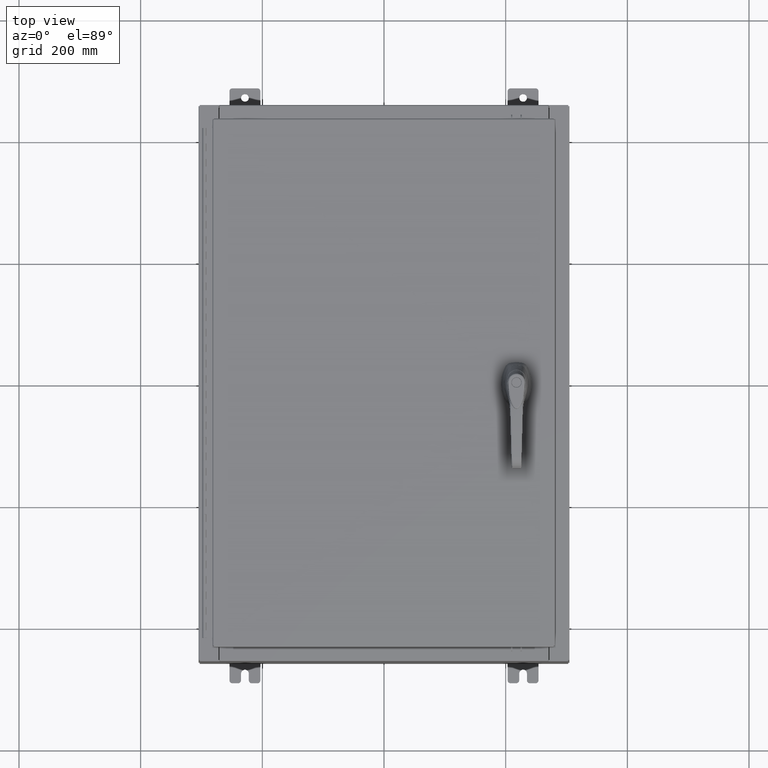
[diagram: clean part render]
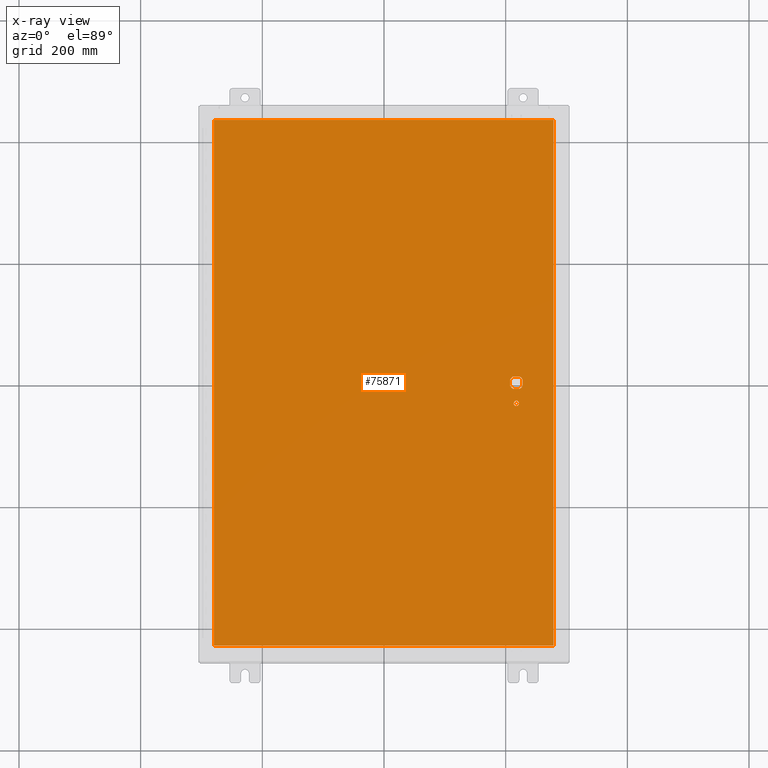
[diagram: x-ray — body ghosted, one internal face saturated and labeled with its STEP entity id]
A machine part, top view, then the same camera in x-ray: the body is ghosted and one INTERNAL B-rep face — a face not visible from any outside direction — is saturated and labeled: STEP entity #75871.
In plain terms, the highlighted planar face has unit normal (0, 0, -1).
Its self-contained STEP definition (entity closure, byte-faithful):
#1635 = CARTESIAN_POINT ( 'NONE',  ( 8.778227370756305000, -0.4029999999999252000, -0.07470000000000003000 ) ) ;
#1810 = DIRECTION ( 'NONE',  ( 1.000000000000000000, 0.0000000000000000000, 0.0000000000000000000 ) ) ;
#3817 = DIRECTION ( 'NONE',  ( 0.0000000000000000000, 0.0000000000000000000, -1.000000000000000000 ) ) ;
#4248 = VERTEX_POINT ( 'NONE', #1635 ) ;
#4332 = CIRCLE ( 'NONE', #76165, 0.4499999999999156900 ) ;
#6293 = CARTESIAN_POINT ( 'NONE',  ( 8.406499999999994100, -1.338000000000000100, -0.07470000000000003000 ) ) ;
#6385 = ORIENTED_EDGE ( 'NONE', *, *, #120303, .F. ) ;
#7230 = VECTOR ( 'NONE', #103252, 39.37007874015748100 ) ;
#7415 = DIRECTION ( 'NONE',  ( -1.000000000000000000, 0.0000000000000000000, 0.0000000000000000000 ) ) ;
#10575 = AXIS2_PLACEMENT_3D ( 'NONE', #108291, #56318, #68976 ) ;
#11255 = FACE_BOUND ( 'NONE', #45939, .T. ) ;
#11481 = EDGE_CURVE ( 'NONE', #4248, #78323, #62853, .T. ) ;
#12783 = AXIS2_PLACEMENT_3D ( 'NONE', #46728, #113292, #56379 ) ;
#12859 = LINE ( 'NONE', #58944, #91903 ) ;
#13143 = EDGE_CURVE ( 'NONE', #29870, #50978, #116078, .T. ) ;
#17678 = CARTESIAN_POINT ( 'NONE',  ( 0.0000000000000000000, 0.4029999999999252000, -0.07470000000000003000 ) ) ;
#18166 = VECTOR ( 'NONE', #55016, 39.37007874015748100 ) ;
#19705 = DIRECTION ( 'NONE',  ( 0.0000000000000000000, -1.000000000000000000, 0.0000000000000000000 ) ) ;
#20570 = CIRCLE ( 'NONE', #77785, 0.4499999999999156900 ) ;
#20671 = CARTESIAN_POINT ( 'NONE',  ( 8.980999999999921700, 2.450686610769031800E-014, -0.07470000000000003000 ) ) ;
#21495 = VECTOR ( 'NONE', #102385, 39.37007874015748100 ) ;
#22267 = EDGE_CURVE ( 'NONE', #25286, #29870, #61058, .T. ) ;
#22571 = ORIENTED_EDGE ( 'NONE', *, *, #24689, .T. ) ;
#23260 = CARTESIAN_POINT ( 'NONE',  ( 8.377772629243686700, -0.4029999999999250300, -0.07470000000000003000 ) ) ;
#23536 = VERTEX_POINT ( 'NONE', #82858 ) ;
#24689 = EDGE_CURVE ( 'NONE', #50978, #4248, #12859, .T. ) ;
#25286 = VERTEX_POINT ( 'NONE', #54803 ) ;
#27981 = ORIENTED_EDGE ( 'NONE', *, *, #74382, .F. ) ;
#29475 = CARTESIAN_POINT ( 'NONE',  ( 8.577999999999995900, 0.0000000000000000000, -0.07470000000000003000 ) ) ;
#29632 = EDGE_CURVE ( 'NONE', #80615, #23536, #48940, .T. ) ;
#29870 = VERTEX_POINT ( 'NONE', #40923 ) ;
#32139 = PLANE ( 'NONE',  #79292 ) ;
#35883 = VERTEX_POINT ( 'NONE', #42604 ) ;
#36809 = ORIENTED_EDGE ( 'NONE', *, *, #29632, .T. ) ;
#38131 = AXIS2_PLACEMENT_3D ( 'NONE', #121439, #64613, #7415 ) ;
#39087 = DIRECTION ( 'NONE',  ( -1.000000000000000000, 0.0000000000000000000, 0.0000000000000000000 ) ) ;
#39610 = EDGE_CURVE ( 'NONE', #54809, #51917, #114730, .T. ) ;
#39821 = DIRECTION ( 'NONE',  ( 2.728745808672812900E-015, -1.000000000000000000, 0.0000000000000000000 ) ) ;
#40923 = CARTESIAN_POINT ( 'NONE',  ( 8.175000000000070000, -0.2002273707563079800, -0.07470000000000003000 ) ) ;
#42604 = CARTESIAN_POINT ( 'NONE',  ( 8.980999999999921700, 0.2002273707563080300, -0.07470000000000003000 ) ) ;
#43017 = VECTOR ( 'NONE', #19705, 39.37007874015748100 ) ;
#43093 = CARTESIAN_POINT ( 'NONE',  ( 8.577999999999995900, 0.0000000000000000000, -0.07470000000000003000 ) ) ;
#43191 = DIRECTION ( 'NONE',  ( 1.000000000000000000, -0.0000000000000000000, -0.0000000000000000000 ) ) ;
#44997 = VERTEX_POINT ( 'NONE', #115976 ) ;
#45344 = CARTESIAN_POINT ( 'NONE',  ( 10.99029999999999800, 17.00630000000000700, -0.07470000000000019700 ) ) ;
#45939 = EDGE_LOOP ( 'NONE', ( #78396, #94423 ) ) ;
#46728 = CARTESIAN_POINT ( 'NONE',  ( 8.577999999999995900, -1.338000000000000100, -0.07470000000000003000 ) ) ;
#47292 = VECTOR ( 'NONE', #39821, 39.37007874015748100 ) ;
#48876 = EDGE_CURVE ( 'NONE', #75411, #119928, #100498, .T. ) ;
#48940 = LINE ( 'NONE', #17678, #96577 ) ;
#49616 = CARTESIAN_POINT ( 'NONE',  ( 8.749499999999997600, -1.338000000000000100, -0.07470000000000003000 ) ) ;
#50978 = VERTEX_POINT ( 'NONE', #23260 ) ;
#51331 = CARTESIAN_POINT ( 'NONE',  ( 0.0000000000000000000, 0.0000000000000000000, -0.07470000000000000300 ) ) ;
#51416 = CIRCLE ( 'NONE', #12783, 0.1715000000000011500 ) ;
#51917 = VERTEX_POINT ( 'NONE', #116875 ) ;
#52743 = DIRECTION ( 'NONE',  ( -1.000000000000000000, 0.0000000000000000000, 0.0000000000000000000 ) ) ;
#54803 = CARTESIAN_POINT ( 'NONE',  ( 8.175000000000070000, 0.2002273707563080300, -0.07470000000000003000 ) ) ;
#54809 = VERTEX_POINT ( 'NONE', #100328 ) ;
#55016 = DIRECTION ( 'NONE',  ( 0.0000000000000000000, 1.000000000000000000, 0.0000000000000000000 ) ) ;
#56318 = DIRECTION ( 'NONE',  ( -0.0000000000000000000, -0.0000000000000000000, 1.000000000000000000 ) ) ;
#56379 = DIRECTION ( 'NONE',  ( -1.000000000000000000, 0.0000000000000000000, 0.0000000000000000000 ) ) ;
#57294 = ORIENTED_EDGE ( 'NONE', *, *, #112961, .F. ) ;
#57479 = DIRECTION ( 'NONE',  ( -1.000000000000000000, 1.776356839400251300E-015, 0.0000000000000000000 ) ) ;
#57687 = CARTESIAN_POINT ( 'NONE',  ( -10.99030000000000500, 17.00630000000000700, -0.07470000000000347200 ) ) ;
#58944 = CARTESIAN_POINT ( 'NONE',  ( 0.0000000000000000000, -0.4029999999999252000, -0.07470000000000003000 ) ) ;
#60255 = ORIENTED_EDGE ( 'NONE', *, *, #13143, .T. ) ;
#61058 = LINE ( 'NONE', #121856, #7230 ) ;
#62099 = FACE_BOUND ( 'NONE', #113496, .T. ) ;
#62853 = CIRCLE ( 'NONE', #77577, 0.4499999999999156900 ) ;
#64613 = DIRECTION ( 'NONE',  ( -0.0000000000000000000, -0.0000000000000000000, 1.000000000000000000 ) ) ;
#68360 = LINE ( 'NONE', #57687, #43017 ) ;
#68976 = DIRECTION ( 'NONE',  ( -1.000000000000000000, 8.881784197001256300E-016, 0.0000000000000000000 ) ) ;
#70529 = DIRECTION ( 'NONE',  ( -1.000000000000000000, 0.0000000000000000000, -0.0000000000000000000 ) ) ;
#70849 = ORIENTED_EDGE ( 'NONE', *, *, #11481, .T. ) ;
#72117 = CARTESIAN_POINT ( 'NONE',  ( 8.577999999999995900, 0.0000000000000000000, -0.07470000000000003000 ) ) ;
#72657 = LINE ( 'NONE', #20671, #47292 ) ;
#73153 = VECTOR ( 'NONE', #43191, 39.37007874015748100 ) ;
#74382 = EDGE_CURVE ( 'NONE', #35883, #78323, #72657, .T. ) ;
#75411 = VERTEX_POINT ( 'NONE', #6293 ) ;
#75871 = ADVANCED_FACE ( 'NONE', ( #11255, #84333, #62099 ), #32139, .T. ) ;
#76165 = AXIS2_PLACEMENT_3D ( 'NONE', #43093, #109679, #52743 ) ;
#77577 = AXIS2_PLACEMENT_3D ( 'NONE', #72117, #93680, #57479 ) ;
#77785 = AXIS2_PLACEMENT_3D ( 'NONE', #29475, #96101, #39087 ) ;
#78323 = VERTEX_POINT ( 'NONE', #113856 ) ;
#78396 = ORIENTED_EDGE ( 'NONE', *, *, #86772, .T. ) ;
#79292 = AXIS2_PLACEMENT_3D ( 'NONE', #51331, #3817, #70529 ) ;
#80615 = VERTEX_POINT ( 'NONE', #91158 ) ;
#81729 = ORIENTED_EDGE ( 'NONE', *, *, #104949, .T. ) ;
#82858 = CARTESIAN_POINT ( 'NONE',  ( 8.377772629243686700, 0.4029999999999252000, -0.07470000000000003000 ) ) ;
#84009 = EDGE_LOOP ( 'NONE', ( #6385, #118738, #57294, #88980 ) ) ;
#84333 = FACE_OUTER_BOUND ( 'NONE', #84009, .T. ) ;
#86772 = EDGE_CURVE ( 'NONE', #119928, #75411, #51416, .T. ) ;
#87246 = EDGE_CURVE ( 'NONE', #112032, #44997, #119776, .T. ) ;
#88980 = ORIENTED_EDGE ( 'NONE', *, *, #87246, .F. ) ;
#91158 = CARTESIAN_POINT ( 'NONE',  ( 8.778227370756305000, 0.4029999999999250300, -0.07470000000000003000 ) ) ;
#91903 = VECTOR ( 'NONE', #1810, 39.37007874015748100 ) ;
#93680 = DIRECTION ( 'NONE',  ( -0.0000000000000000000, -0.0000000000000000000, 1.000000000000000000 ) ) ;
#94423 = ORIENTED_EDGE ( 'NONE', *, *, #48876, .T. ) ;
#96101 = DIRECTION ( 'NONE',  ( -0.0000000000000000000, -0.0000000000000000000, 1.000000000000000000 ) ) ;
#96577 = VECTOR ( 'NONE', #122472, 39.37007874015748100 ) ;
#100232 = CARTESIAN_POINT ( 'NONE',  ( -10.99030000000000000, -17.00629999999999600, -0.07470000000000019700 ) ) ;
#100328 = CARTESIAN_POINT ( 'NONE',  ( -10.99030000000000000, -17.00629999999999600, -0.07470000000000000300 ) ) ;
#100498 = CIRCLE ( 'NONE', #38131, 0.1715000000000011500 ) ;
#101121 = CARTESIAN_POINT ( 'NONE',  ( 10.99029999999999600, 17.00630000000000700, -0.07470000000000000300 ) ) ;
#102385 = DIRECTION ( 'NONE',  ( -1.000000000000000000, -0.0000000000000000000, -0.0000000000000000000 ) ) ;
#102396 = CARTESIAN_POINT ( 'NONE',  ( 10.99029999999999600, -17.00629999999999200, -0.07470000000000019700 ) ) ;
#103252 = DIRECTION ( 'NONE',  ( 0.0000000000000000000, -1.000000000000000000, 0.0000000000000000000 ) ) ;
#104949 = EDGE_CURVE ( 'NONE', #35883, #80615, #4332, .T. ) ;
#106132 = EDGE_CURVE ( 'NONE', #23536, #25286, #20570, .T. ) ;
#108291 = CARTESIAN_POINT ( 'NONE',  ( 8.577999999999995900, 0.0000000000000000000, -0.07470000000000003000 ) ) ;
#109679 = DIRECTION ( 'NONE',  ( -0.0000000000000000000, -0.0000000000000000000, 1.000000000000000000 ) ) ;
#112032 = VERTEX_POINT ( 'NONE', #101121 ) ;
#112961 = EDGE_CURVE ( 'NONE', #44997, #54809, #68360, .T. ) ;
#113292 = DIRECTION ( 'NONE',  ( -0.0000000000000000000, -0.0000000000000000000, 1.000000000000000000 ) ) ;
#113496 = EDGE_LOOP ( 'NONE', ( #70849, #27981, #81729, #36809, #123001, #121763, #60255, #22571 ) ) ;
#113856 = CARTESIAN_POINT ( 'NONE',  ( 8.980999999999921700, -0.2002273707563075900, -0.07470000000000003000 ) ) ;
#114730 = LINE ( 'NONE', #100232, #73153 ) ;
#115976 = CARTESIAN_POINT ( 'NONE',  ( -10.99030000000000100, 17.00630000000000700, -0.07470000000000000300 ) ) ;
#116078 = CIRCLE ( 'NONE', #10575, 0.4499999999999156900 ) ;
#116875 = CARTESIAN_POINT ( 'NONE',  ( 10.99029999999999600, -17.00629999999999600, -0.07470000000000000300 ) ) ;
#118738 = ORIENTED_EDGE ( 'NONE', *, *, #39610, .F. ) ;
#119425 = LINE ( 'NONE', #102396, #18166 ) ;
#119776 = LINE ( 'NONE', #45344, #21495 ) ;
#119928 = VERTEX_POINT ( 'NONE', #49616 ) ;
#120303 = EDGE_CURVE ( 'NONE', #51917, #112032, #119425, .T. ) ;
#121439 = CARTESIAN_POINT ( 'NONE',  ( 8.577999999999995900, -1.338000000000000100, -0.07470000000000003000 ) ) ;
#121763 = ORIENTED_EDGE ( 'NONE', *, *, #22267, .T. ) ;
#121856 = CARTESIAN_POINT ( 'NONE',  ( 8.175000000000070000, 0.0000000000000000000, -0.07470000000000003000 ) ) ;
#122472 = DIRECTION ( 'NONE',  ( -1.000000000000000000, 0.0000000000000000000, 0.0000000000000000000 ) ) ;
#123001 = ORIENTED_EDGE ( 'NONE', *, *, #106132, .T. ) ;